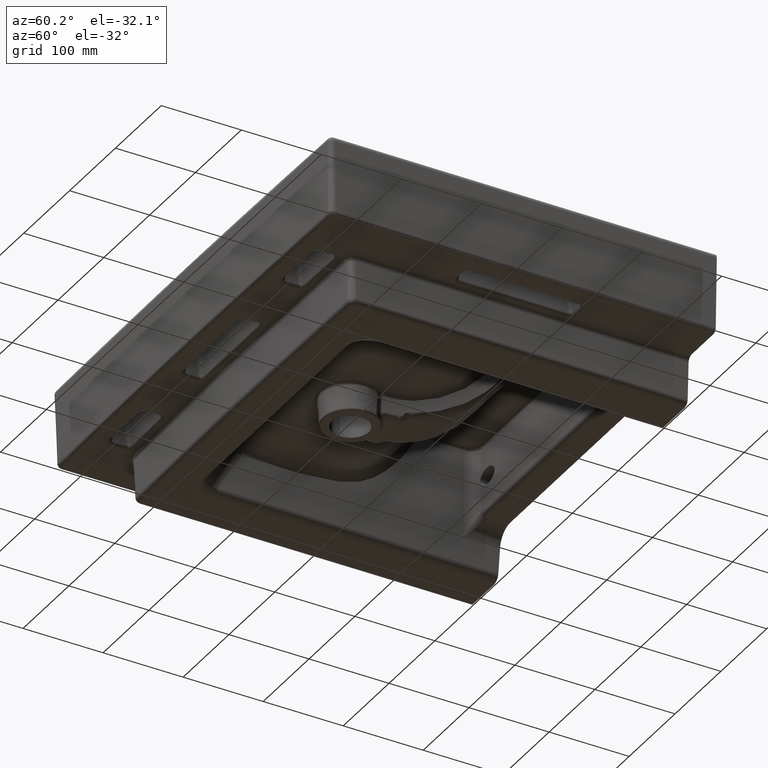
[diagram: clean part render]
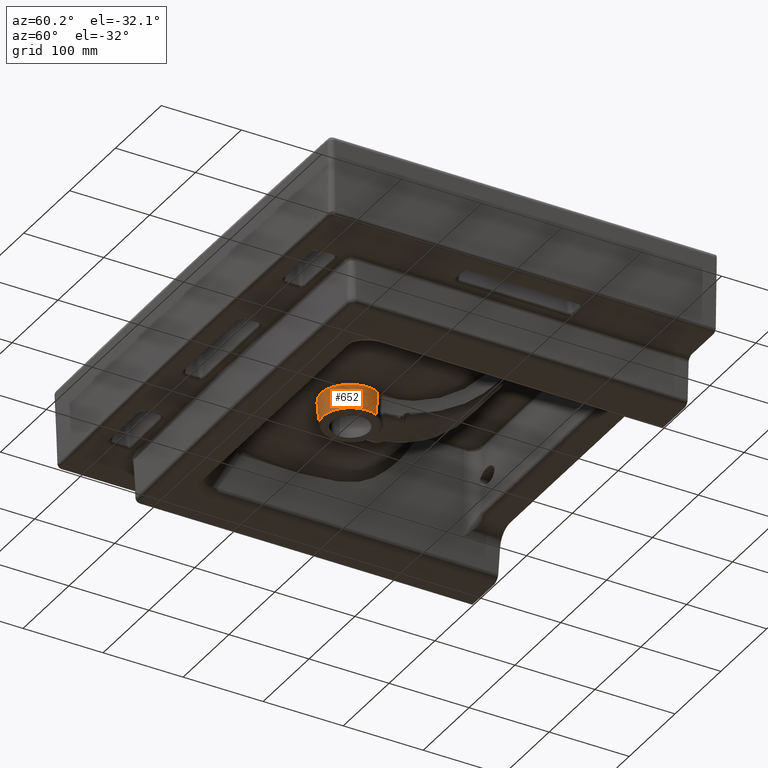
[diagram: same view with one face highlighted and labeled with its STEP entity id]
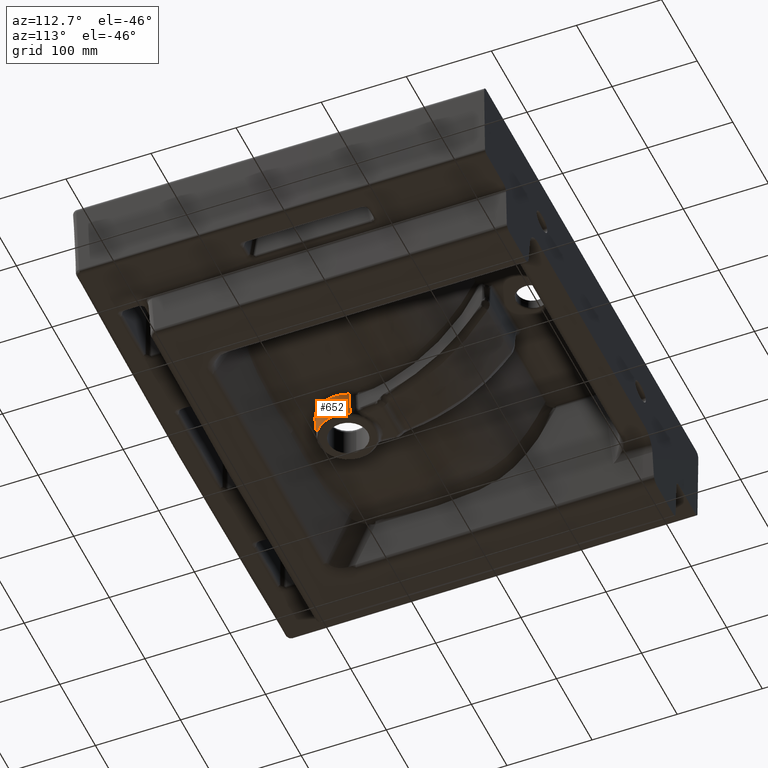
[diagram: same view with one face highlighted and labeled with its STEP entity id]
A machine part, auxiliary view. The second image highlights one B-rep face of the part: STEP entity #652.
A second angle (auxiliary view) of the same face is appended — the face is thin or edge-on in the first view.
In plain terms, the highlighted conical surface has half-angle 4 deg.
Its self-contained STEP definition (entity closure, byte-faithful):
#366=CONICAL_SURFACE('',#5134,33.9975640502598,4.);
#456=CIRCLE('',#5133,34.1975890596058);
#652=ADVANCED_FACE('',(#1005),#366,.T.);
#1005=FACE_OUTER_BOUND('',#1345,.T.);
#1345=EDGE_LOOP('',(#2055,#2056,#2057,#2058,#2059));
#2055=ORIENTED_EDGE('',*,*,#4014,.T.);
#2056=ORIENTED_EDGE('',*,*,#4015,.F.);
#2057=ORIENTED_EDGE('',*,*,#4016,.F.);
#2058=ORIENTED_EDGE('',*,*,#4017,.T.);
#2059=ORIENTED_EDGE('',*,*,#4018,.T.);
#3544=VERTEX_POINT('',#7502);
#3545=VERTEX_POINT('',#7503);
#3546=VERTEX_POINT('',#7522);
#3547=VERTEX_POINT('',#7530);
#3548=VERTEX_POINT('',#7532);
#4014=EDGE_CURVE('',#3544,#3545,#4700,.T.);
#4015=EDGE_CURVE('',#3546,#3545,#4701,.T.);
#4016=EDGE_CURVE('',#3547,#3546,#4702,.T.);
#4017=EDGE_CURVE('',#3547,#3548,#456,.T.);
#4018=EDGE_CURVE('',#3548,#3544,#4703,.T.);
#4700=B_SPLINE_CURVE_WITH_KNOTS('',3,(#7484,#7485,#7486,#7487,#7488,#7489,
#7490,#7491,#7492,#7493,#7494,#7495,#7496,#7497,#7498,#7499,#7500,#7501),
 .UNSPECIFIED.,.F.,.F.,(4,2,2,2,2,2,2,2,4),(0.,0.125,0.25,0.375,0.5,0.625,
0.75,0.875,1.),.UNSPECIFIED.);
#4701=B_SPLINE_CURVE_WITH_KNOTS('',3,(#7504,#7505,#7506,#7507,#7508,#7509,
#7510,#7511,#7512,#7513,#7514,#7515,#7516,#7517,#7518,#7519,#7520,#7521),
 .UNSPECIFIED.,.F.,.F.,(4,2,2,2,2,2,2,2,4),(0.,0.125,0.25,0.375,0.5,0.625,
0.75,0.875,1.),.UNSPECIFIED.);
#4702=B_SPLINE_CURVE_WITH_KNOTS('',3,(#7523,#7524,#7525,#7526,#7527,#7528,
#7529),.UNSPECIFIED.,.F.,.F.,(4,3,4),(0.,0.964842149121604,1.),
 .UNSPECIFIED.);
#4703=B_SPLINE_CURVE_WITH_KNOTS('',3,(#7533,#7534,#7535,#7536),
 .UNSPECIFIED.,.F.,.F.,(4,4),(0.,1.),.UNSPECIFIED.);
#5133=AXIS2_PLACEMENT_3D('',#7531,#5539,#5540);
#5134=AXIS2_PLACEMENT_3D('',#7537,#5541,#5542);
#5539=DIRECTION('',(0.,0.,1.));
#5540=DIRECTION('',(1.,0.,0.));
#5541=DIRECTION('',(0.,0.,1.));
#5542=DIRECTION('',(-1.83697019872103E-016,-1.,-5.34149478410969E-016));
#7484=CARTESIAN_POINT('',(32.929476894248,-262.352032606656,-114.845266502729));
#7485=CARTESIAN_POINT('',(34.1910767238826,-265.120440072475,-114.846506219847));
#7486=CARTESIAN_POINT('',(35.0824290370056,-267.986908907932,-114.846597250076));
#7487=CARTESIAN_POINT('',(36.1487103496922,-273.909593864958,-114.845002023108));
#7488=CARTESIAN_POINT('',(36.3102294768189,-276.972588313094,-114.843121798297));
#7489=CARTESIAN_POINT('',(35.8789648833514,-282.955477695138,-114.836825387542));
#7490=CARTESIAN_POINT('',(35.2813400879531,-285.958621389027,-114.832255788962));
#7491=CARTESIAN_POINT('',(33.3748318474818,-291.673793597737,-114.8204338703));
#7492=CARTESIAN_POINT('',(32.0814641283647,-294.381214997926,-114.812692254281));
#7493=CARTESIAN_POINT('',(28.7989597709446,-299.488848140533,-114.787330881978));
#7494=CARTESIAN_POINT('',(26.8623071960626,-301.80116167453,-114.77350665996));
#7495=CARTESIAN_POINT('',(22.4646593603314,-305.900351041712,-114.721707358944));
#7496=CARTESIAN_POINT('',(19.9748280617729,-307.69738413073,-114.686364596015));
#7497=CARTESIAN_POINT('',(14.7121009320578,-310.576495874027,-114.600764143443));
#7498=CARTESIAN_POINT('',(11.8730478965756,-311.699301076616,-114.549219350692));
#7499=CARTESIAN_POINT('',(6.02475599689962,-313.19742624097,-114.457747343994));
#7500=CARTESIAN_POINT('',(3.04231709338521,-313.577369775803,-114.420014897835));
#7501=CARTESIAN_POINT('',(-3.47590552069561E-012,-313.578835972144,-114.399047313286));
#7502=CARTESIAN_POINT('',(32.9295246077837,-262.352110450363,-114.845210356439));
#7503=CARTESIAN_POINT('',(0.,-313.578835972144,-114.399047313286));
#7504=CARTESIAN_POINT('',(-32.929476894248,-262.352032606656,-114.845266502729));
#7505=CARTESIAN_POINT('',(-34.1910767238826,-265.120440072475,-114.846506219847));
#7506=CARTESIAN_POINT('',(-35.0824290370056,-267.986908907932,-114.846597250076));
#7507=CARTESIAN_POINT('',(-36.1487103496922,-273.909593864958,-114.845002023108));
#7508=CARTESIAN_POINT('',(-36.3102294768189,-276.972588313094,-114.843121798297));
#7509=CARTESIAN_POINT('',(-35.8789648833514,-282.955477695138,-114.836825387542));
#7510=CARTESIAN_POINT('',(-35.2813400879531,-285.958621389027,-114.832255788962));
#7511=CARTESIAN_POINT('',(-33.3748318474819,-291.673793597737,-114.8204338703));
#7512=CARTESIAN_POINT('',(-32.0814641283647,-294.381214997926,-114.812692254281));
#7513=CARTESIAN_POINT('',(-28.7989597709446,-299.488848140533,-114.787330881977));
#7514=CARTESIAN_POINT('',(-26.8623071960626,-301.80116167453,-114.77350665996));
#7515=CARTESIAN_POINT('',(-22.4646593603313,-305.900351041712,-114.721707358944));
#7516=CARTESIAN_POINT('',(-19.9748280617729,-307.69738413073,-114.686364596016));
#7517=CARTESIAN_POINT('',(-14.7121009320577,-310.576495874027,-114.600764143443));
#7518=CARTESIAN_POINT('',(-11.8730478965755,-311.699301076616,-114.549219350692));
#7519=CARTESIAN_POINT('',(-6.02475599689946,-313.19742624097,-114.457747343994));
#7520=CARTESIAN_POINT('',(-3.04231709338523,-313.577369775803,-114.420014897835));
#7521=CARTESIAN_POINT('',(3.47590552069561E-012,-313.578835972144,-114.399047313286));
#7522=CARTESIAN_POINT('',(-32.9295246077837,-262.352110450363,-114.845210356439));
#7523=CARTESIAN_POINT('',(-30.7285775579031,-262.351911620763,-143.310472917246));
#7524=CARTESIAN_POINT('',(-31.4410325347115,-262.352000601684,-134.156001002813));
#7525=CARTESIAN_POINT('',(-32.1487570456736,-262.352089582606,-125.001161080936));
#7526=CARTESIAN_POINT('',(-32.852623275927,-262.352178563528,-115.84602479141));
#7527=CARTESIAN_POINT('',(-32.8782714340056,-262.352181805901,-115.512421085631));
#7528=CARTESIAN_POINT('',(-32.9039195920843,-262.352185048274,-115.178817379852));
#7529=CARTESIAN_POINT('',(-32.9295677501629,-262.352188290647,-114.845213674073));
#7530=CARTESIAN_POINT('',(-30.7285733452829,-262.351902750126,-143.310472589309));
#7531=CARTESIAN_POINT('',(0.,-277.359563137183,-143.310472261253));
#7532=CARTESIAN_POINT('',(30.7285733452829,-262.351902750126,-143.310472589309));
#7533=CARTESIAN_POINT('',(30.7285691326626,-262.35189387949,-143.310472261371));
#7534=CARTESIAN_POINT('',(31.4336744114913,-262.35187690981,-134.249763087723));
#7535=CARTESIAN_POINT('',(32.1672007430267,-262.351461844421,-124.761341346868));
#7536=CARTESIAN_POINT('',(32.9294814654046,-262.352032610079,-114.845207038806));
#7537=CARTESIAN_POINT('',(0.,-277.359563137183,-146.170963162906));